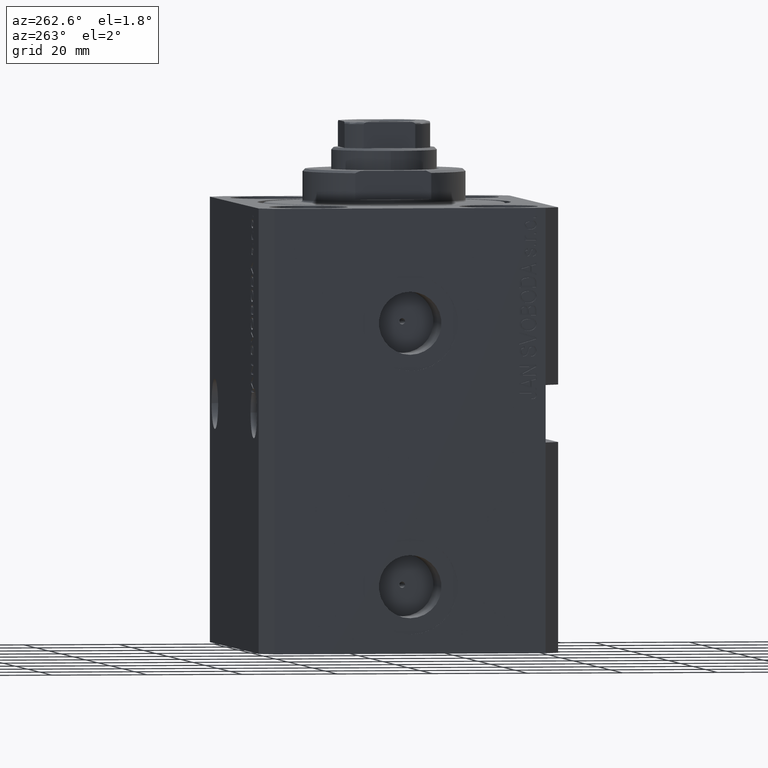
[diagram: clean part render]
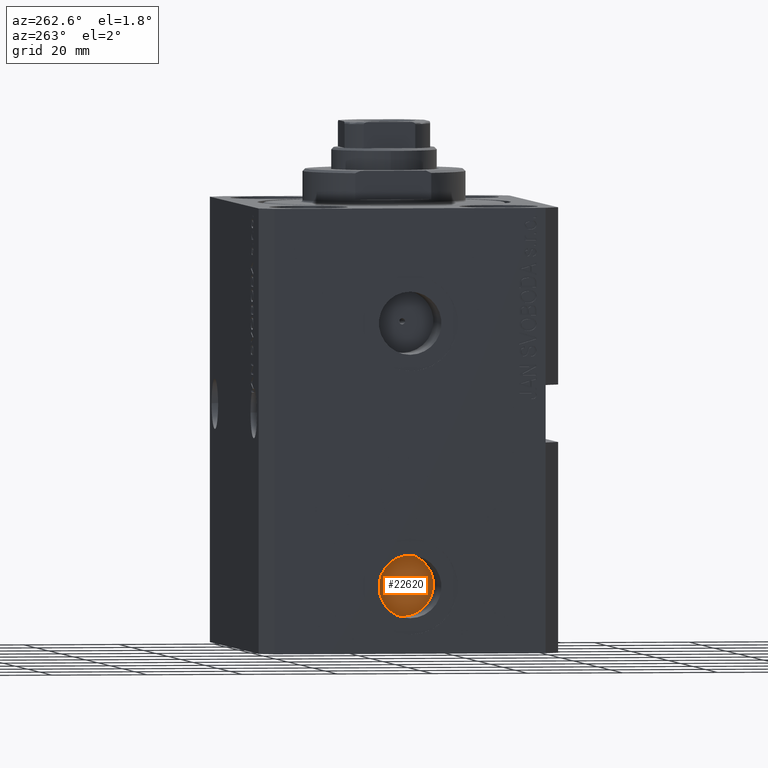
[diagram: same view with one face highlighted and labeled with its STEP entity id]
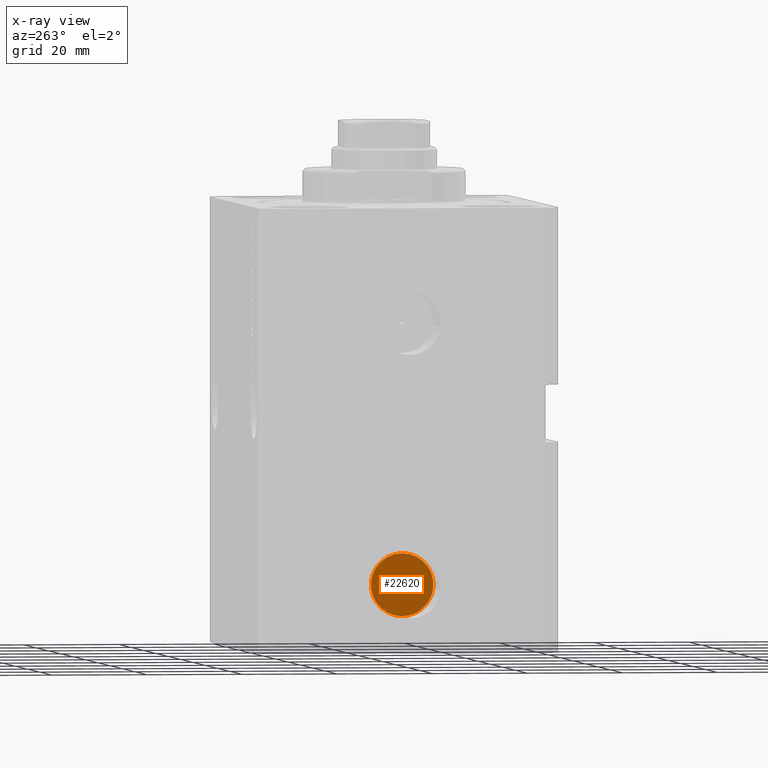
[diagram: x-ray of the same camera — body ghosted, the highlighted face saturated]
A machine part, auxiliary view. The second image highlights one B-rep face of the part: STEP entity #22620.
The next image is the same camera in x-ray: the body ghosted, the highlighted face saturated — about 0% of this face is hidden behind the body in this view.
In plain terms, the highlighted planar face has unit normal (-1, 0, 0).
Its self-contained STEP definition (entity closure, byte-faithful):
#264 = DIRECTION ( 'NONE',  ( -1.000000000000000000, 0.000000000000000000, 0.000000000000000000 ) ) ;
#615 = CARTESIAN_POINT ( 'NONE',  ( -29.40000000000000213, -9.674709713264090904E-15, -72.42000000000000171 ) ) ;
#1621 = ORIENTED_EDGE ( 'NONE', *, *, #34073, .F. ) ;
#2268 = AXIS2_PLACEMENT_3D ( 'NONE', #22515, #11991, #12680 ) ;
#3048 = CARTESIAN_POINT ( 'NONE',  ( -29.40000000000000213, -9.674709713264090904E-15, -78.37500000000000000 ) ) ;
#3254 = CIRCLE ( 'NONE', #5476, 6.580000000000002736 ) ;
#5253 = CARTESIAN_POINT ( 'NONE',  ( -29.40000000000000213, -9.674709713264090904E-15, -79.00000000000000000 ) ) ;
#5476 = AXIS2_PLACEMENT_3D ( 'NONE', #5253, #43987, #30209 ) ;
#6669 = FACE_BOUND ( 'NONE', #8026, .T. ) ;
#7604 = AXIS2_PLACEMENT_3D ( 'NONE', #35786, #264, #42235 ) ;
#8026 = EDGE_LOOP ( 'NONE', ( #35370, #1621 ) ) ;
#9665 = PLANE ( 'NONE',  #24056 ) ;
#9983 = CIRCLE ( 'NONE', #39251, 6.580000000000002736 ) ;
#11269 = CIRCLE ( 'NONE', #7604, 0.6250000000000005551 ) ;
#11991 = DIRECTION ( 'NONE',  ( -1.000000000000000000, 0.000000000000000000, 0.000000000000000000 ) ) ;
#12680 = DIRECTION ( 'NONE',  ( 0.000000000000000000, 0.000000000000000000, 1.000000000000000000 ) ) ;
#15249 = DIRECTION ( 'NONE',  ( 0.000000000000000000, 0.000000000000000000, 1.000000000000000000 ) ) ;
#16237 = EDGE_CURVE ( 'NONE', #23200, #37749, #9983, .T. ) ;
#19139 = VERTEX_POINT ( 'NONE', #29181 ) ;
#20597 = CARTESIAN_POINT ( 'NONE',  ( -29.40000000000000213, -8.868892119425131862E-15, -85.57999999999999829 ) ) ;
#22084 = DIRECTION ( 'NONE',  ( -1.000000000000000000, 0.000000000000000000, 0.000000000000000000 ) ) ;
#22515 = CARTESIAN_POINT ( 'NONE',  ( -29.40000000000000213, -9.674709713264090904E-15, -79.00000000000000000 ) ) ;
#22620 = ADVANCED_FACE ( 'NONE', ( #6669, #27499 ), #9665, .T. ) ;
#23200 = VERTEX_POINT ( 'NONE', #615 ) ;
#24056 = AXIS2_PLACEMENT_3D ( 'NONE', #30718, #45202, #30935 ) ;
#27298 = EDGE_LOOP ( 'NONE', ( #36278, #42451 ) ) ;
#27499 = FACE_OUTER_BOUND ( 'NONE', #27298, .T. ) ;
#29181 = CARTESIAN_POINT ( 'NONE',  ( -29.40000000000000213, -9.598169288317379858E-15, -79.62500000000000000 ) ) ;
#29645 = CARTESIAN_POINT ( 'NONE',  ( -29.40000000000000213, -9.674709713264090904E-15, -79.00000000000000000 ) ) ;
#29932 = EDGE_CURVE ( 'NONE', #43967, #19139, #31518, .T. ) ;
#30209 = DIRECTION ( 'NONE',  ( 0.000000000000000000, 0.000000000000000000, 1.000000000000000000 ) ) ;
#30718 = CARTESIAN_POINT ( 'NONE',  ( -29.40000000000000213, -9.674709713264090904E-15, -79.00000000000000000 ) ) ;
#30935 = DIRECTION ( 'NONE',  ( 0.000000000000000000, 0.000000000000000000, 1.000000000000000000 ) ) ;
#31518 = CIRCLE ( 'NONE', #2268, 0.6250000000000005551 ) ;
#34073 = EDGE_CURVE ( 'NONE', #19139, #43967, #11269, .T. ) ;
#35370 = ORIENTED_EDGE ( 'NONE', *, *, #29932, .F. ) ;
#35786 = CARTESIAN_POINT ( 'NONE',  ( -29.40000000000000213, -9.674709713264090904E-15, -79.00000000000000000 ) ) ;
#36278 = ORIENTED_EDGE ( 'NONE', *, *, #16237, .T. ) ;
#37749 = VERTEX_POINT ( 'NONE', #20597 ) ;
#39251 = AXIS2_PLACEMENT_3D ( 'NONE', #29645, #22084, #15249 ) ;
#41135 = EDGE_CURVE ( 'NONE', #37749, #23200, #3254, .T. ) ;
#42235 = DIRECTION ( 'NONE',  ( 0.000000000000000000, 0.000000000000000000, 1.000000000000000000 ) ) ;
#42451 = ORIENTED_EDGE ( 'NONE', *, *, #41135, .T. ) ;
#43967 = VERTEX_POINT ( 'NONE', #3048 ) ;
#43987 = DIRECTION ( 'NONE',  ( -1.000000000000000000, 0.000000000000000000, 0.000000000000000000 ) ) ;
#45202 = DIRECTION ( 'NONE',  ( -1.000000000000000000, 0.000000000000000000, 0.000000000000000000 ) ) ;